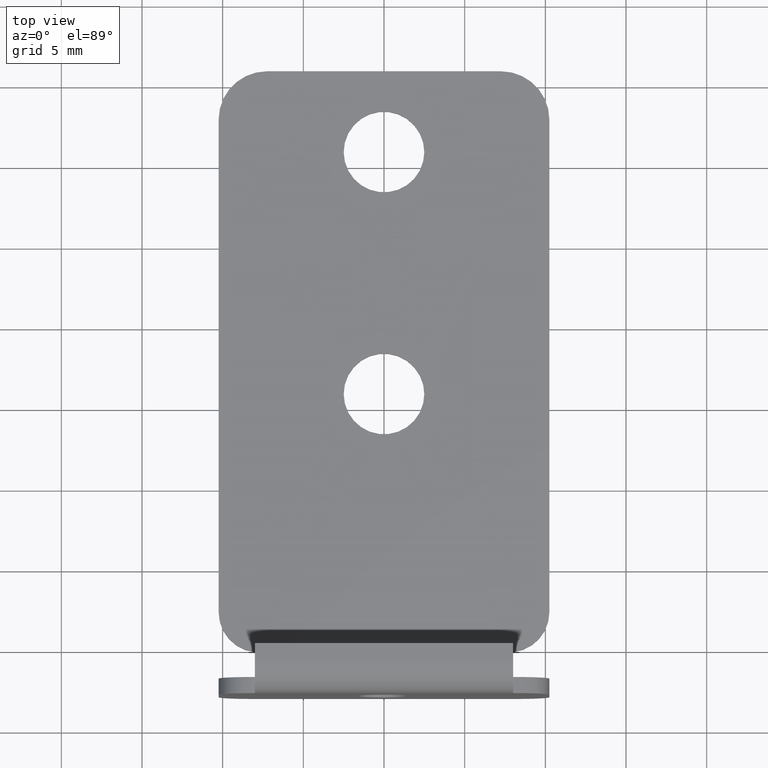
[diagram: clean part render]
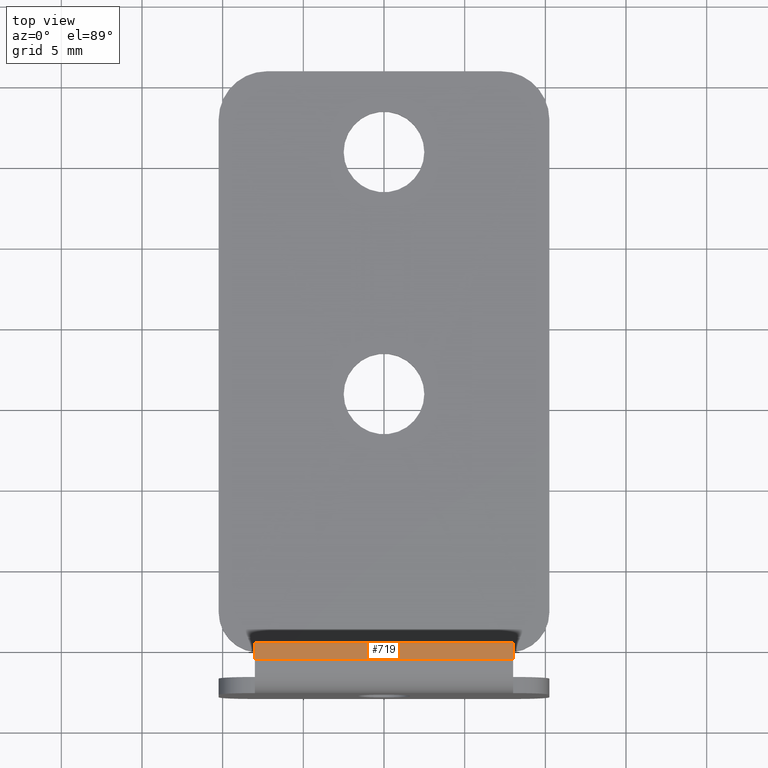
[diagram: same view with one face highlighted and labeled with its STEP entity id]
A machine part, top view. The second image highlights one B-rep face of the part: STEP entity #719.
In plain terms, the highlighted planar face has unit normal (0, -0.0349, -0.9994).
Its self-contained STEP definition (entity closure, byte-faithful):
#37=PLANE('',#804);
#71=FACE_OUTER_BOUND('',#115,.T.);
#115=EDGE_LOOP('',(#582,#583,#584,#585));
#170=LINE('',#1166,#238);
#174=LINE('',#1176,#242);
#179=LINE('',#1190,#247);
#181=LINE('',#1193,#249);
#238=VECTOR('',#937,10.);
#242=VECTOR('',#947,1.44);
#247=VECTOR('',#964,10.);
#249=VECTOR('',#968,10.);
#341=VERTEX_POINT('',#1164);
#342=VERTEX_POINT('',#1165);
#345=VERTEX_POINT('',#1174);
#348=VERTEX_POINT('',#1189);
#420=EDGE_CURVE('',#341,#342,#170,.T.);
#426=EDGE_CURVE('',#345,#342,#174,.T.);
#433=EDGE_CURVE('',#341,#348,#179,.T.);
#435=EDGE_CURVE('',#348,#345,#181,.T.);
#582=ORIENTED_EDGE('',*,*,#420,.T.);
#583=ORIENTED_EDGE('',*,*,#426,.F.);
#584=ORIENTED_EDGE('',*,*,#435,.F.);
#585=ORIENTED_EDGE('',*,*,#433,.F.);
#719=ADVANCED_FACE('',(#71),#37,.F.);
#804=AXIS2_PLACEMENT_3D('',#1194,#969,#970);
#937=DIRECTION('',(1.,-9.76250363060957E-20,8.71029983165538E-19));
#947=DIRECTION('',(-1.27964073796983E-19,-0.999390827019096,0.0348994967025005));
#964=DIRECTION('',(1.27964073796983E-19,0.999390827019096,-0.0348994967025009));
#968=DIRECTION('',(1.,-1.32352003312216E-19,-1.23420239769183E-19));
#969=DIRECTION('center_axis',(8.6709231060159E-19,-0.0348994967025006,-0.999390827019096));
#970=DIRECTION('ref_axis',(1.27964073796983E-19,0.999390827019096,-0.0348994967025006));
#1164=CARTESIAN_POINT('',(-8.,-0.617323882234297,9.92350010380505));
#1165=CARTESIAN_POINT('',(8.,-0.617323882234297,9.92350010380505));
#1166=CARTESIAN_POINT('',(-1.21453330958414E-16,-0.617323882234297,9.92350010380505));
#1174=CARTESIAN_POINT('',(8.,0.382066944784798,9.88860060710255));
#1176=CARTESIAN_POINT('',(8.,-5.13846146976293,10.0813817073396));
#1189=CARTESIAN_POINT('',(-8.,0.382066944784798,9.88860060710255));
#1190=CARTESIAN_POINT('',(-8.,-0.617323882234297,9.92350010380505));
#1193=CARTESIAN_POINT('',(-8.,0.382066944784798,9.88860060710255));
#1194=CARTESIAN_POINT('Origin',(-2.4268610041016E-16,-1.24791286560691,
9.94552075633744));